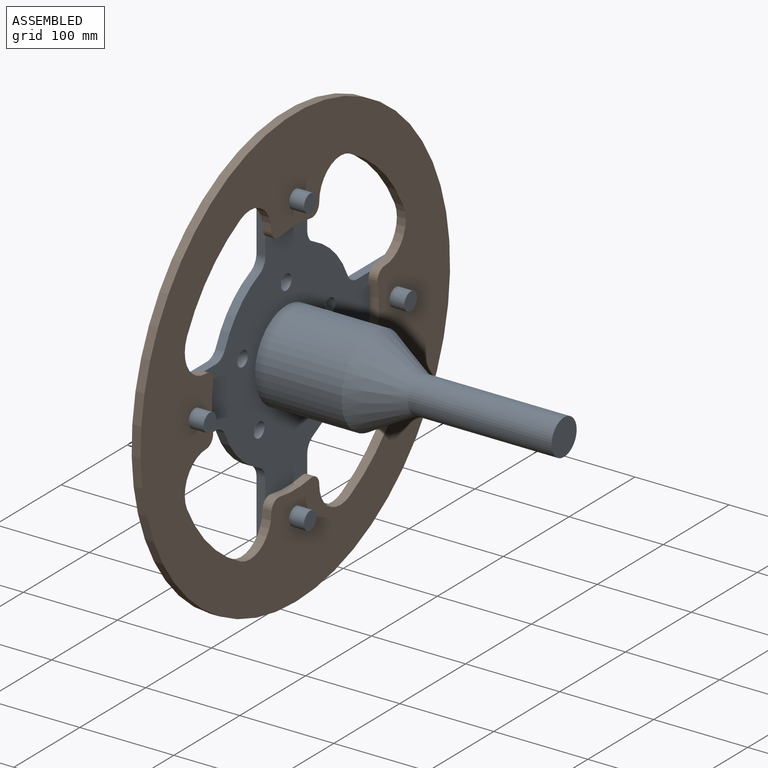
[diagram: assembled view]
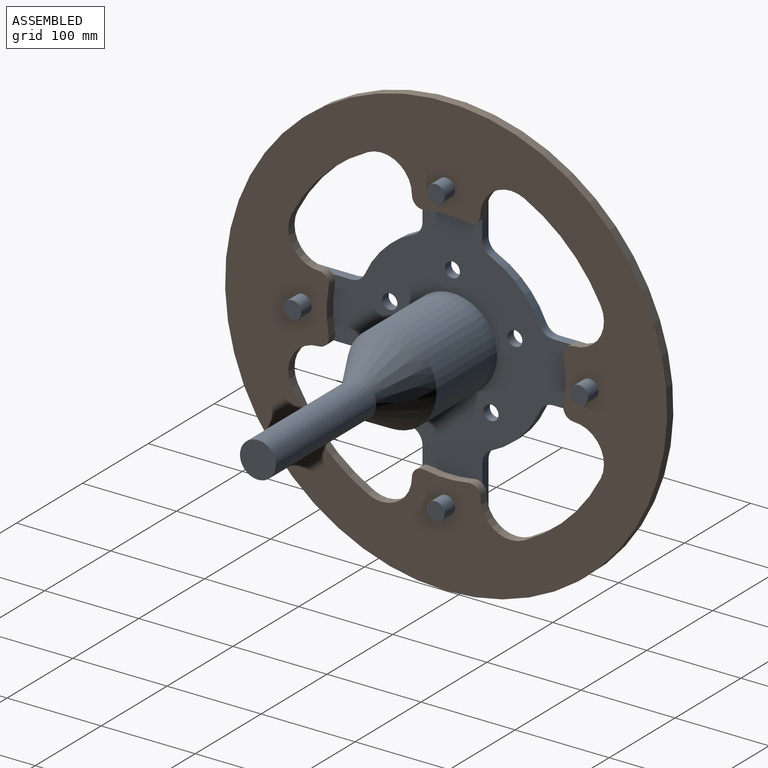
[diagram: assembled view, second angle]
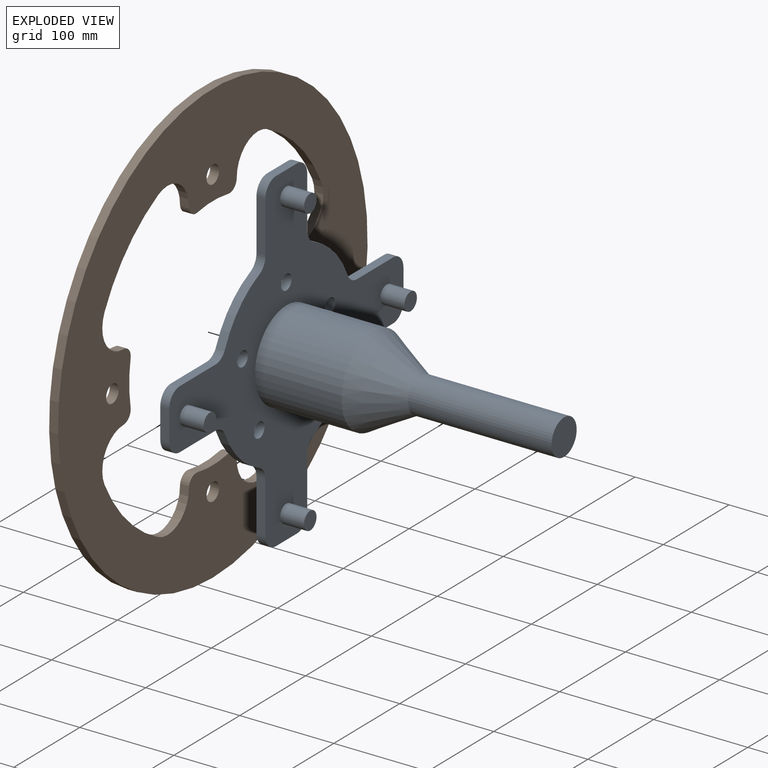
[diagram: exploded view]
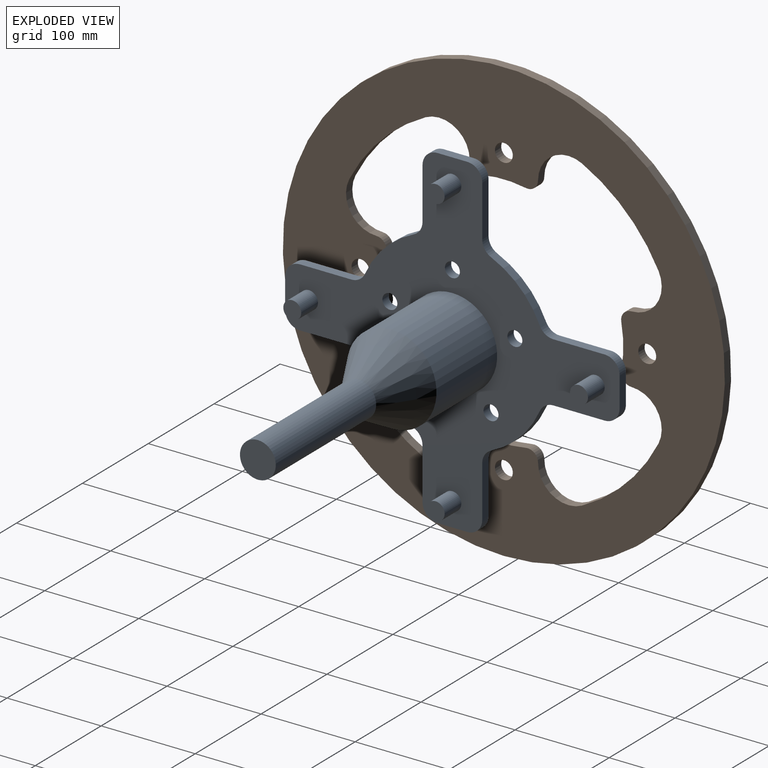
[diagram: exploded view, second angle]
ASSEMBLY  parts=2 mates=3
PART A: 54 faces, bbox 304.8x355.6x355.6 mm
  f0: plane 355.6x355.6mm, normal (1,0,0), area 42685.2mm2, adj f1,f2,f3,f4,f5,f6,f7,f8
  f1: plane 54.54x9.53mm, normal (0,-1,0), area 519.5mm2, adj f0,f23,f26,f27
  f2: cylinder r=101.6mm len=51.69mm, axis (-1,0,0), area 712.2mm2, adj f0,f23,f27,f31
  f3: plane 54.54x9.53mm, normal (0,0,1), area 519.5mm2, adj f0,f23,f31,f38
  f4: plane 31.75x9.53mm, normal (0,-1,0), area 302.4mm2, adj f0,f23,f38,f39
  f5: plane 54.54x9.53mm, normal (0,0,-1), area 519.5mm2, adj f0,f23,f32,f39
  f6: cylinder r=101.6mm len=51.69mm, axis (-1,0,0), area 712.2mm2, adj f0,f23,f32,f33
  f7: plane 54.54x9.53mm, normal (0,-1,0), area 519.5mm2, adj f0,f23,f33,f36
  f8: plane 31.75x9.53mm, normal (0,0,-1), area 302.4mm2, adj f0,f23,f36,f37
  f9: plane 54.54x9.53mm, normal (0,1,0), area 519.5mm2, adj f0,f23,f28,f37
  f10: cylinder r=101.6mm len=51.69mm, axis (-1,0,0), area 712.2mm2, adj f0,f23,f28,f29
  f11: plane 54.54x9.53mm, normal (0,0,-1), area 519.5mm2, adj f0,f23,f29,f34
  f12: plane 31.75x9.53mm, normal (0,1,0), area 302.4mm2, adj f0,f23,f34,f35
  f13: plane 54.54x9.53mm, normal (0,0,1), area 519.5mm2, adj f0,f23,f30,f35
  f14: cylinder r=101.6mm len=51.69mm, axis (-1,0,0), area 712.2mm2, adj f0,f23,f24,f30
  f15: plane 54.54x9.53mm, normal (0,1,0), area 519.5mm2, adj f0,f23,f24,f25
  f16: cylinder r=7.94mm len=15.88mm, axis (-1,0,0), area 475mm2, adj f0,f23
  f17: cylinder r=7.94mm len=15.88mm, axis (-1,0,0), area 475mm2, adj f0,f23
  f18: cylinder r=7.94mm len=15.88mm, axis (-1,0,0), area 475mm2, adj f0,f23
  f19: cylinder r=7.94mm len=15.88mm, axis (-1,0,0), area 475mm2, adj f0,f23
  f20: cylinder r=7.94mm len=15.88mm, axis (-1,0,0), area 475mm2, adj f0,f23
  f21: plane 31.75x9.53mm, normal (0,0,1), area 302.4mm2, adj f0,f23,f25,f26
  f22: cylinder r=41.27mm len=101.6mm, axis (-1,0,0), area 26348.8mm2, adj f23,f41
  f23: plane 355.6x355.6mm, normal (-1,0,0), area 45598.8mm2, adj f1,f2,f3,f4,f5,f6,f7,f8
  f24: cylinder r=15.88mm len=14.51mm, axis (-1,0,0), area 174.4mm2, adj f0,f14,f15,f23
  f25: cylinder r=15.88mm len=15.88mm, axis (1,0,0), area 237.5mm2, adj f0,f15,f21,f23
  f26: cylinder r=15.88mm len=15.88mm, axis (1,0,0), area 237.5mm2, adj f0,f1,f21,f23
  f27: cylinder r=15.88mm len=14.51mm, axis (-1,0,0), area 174.4mm2, adj f0,f1,f2,f23
  f28: cylinder r=15.88mm len=14.51mm, axis (-1,0,0), area 174.4mm2, adj f0,f9,f10,f23
  f29: cylinder r=15.88mm len=14.51mm, axis (-1,0,0), area 174.4mm2, adj f0,f10,f11,f23
  f30: cylinder r=15.88mm len=14.51mm, axis (-1,0,0), area 174.4mm2, adj f0,f13,f14,f23
  f31: cylinder r=15.88mm len=14.51mm, axis (-1,0,0), area 174.4mm2, adj f0,f2,f3,f23
  f32: cylinder r=15.88mm len=14.51mm, axis (-1,0,0), area 174.4mm2, adj f0,f5,f6,f23
  f33: cylinder r=15.88mm len=14.51mm, axis (-1,0,0), area 174.4mm2, adj f0,f6,f7,f23
  f34: cylinder r=15.88mm len=15.88mm, axis (-1,0,0), area 237.5mm2, adj f0,f11,f12,f23
  f35: cylinder r=15.88mm len=15.88mm, axis (-1,0,0), area 237.5mm2, adj f0,f12,f13,f23
  f36: cylinder r=15.88mm len=15.88mm, axis (-1,0,0), area 237.5mm2, adj f0,f7,f8,f23
  f37: cylinder r=15.88mm len=15.88mm, axis (-1,0,0), area 237.5mm2, adj f0,f8,f9,f23
  f38: cylinder r=15.88mm len=15.88mm, axis (-1,0,0), area 237.5mm2, adj f0,f3,f4,f23
  f39: cylinder r=15.88mm len=15.88mm, axis (-1,0,0), area 237.5mm2, adj f0,f4,f5,f23
  f40: plane 25.4x25.4mm, normal (-1,0,0), area 506.7mm2, adj f41
  f41: cone r=41.27mm half-angle=29.4deg, axis (-1,0,0), area 9883.3mm2, adj f22,f40
  f42: cylinder r=19.05mm len=152.4mm, axis (1,0,0), area 18241.5mm2, adj f43,f45
  f43: cone r=19.05mm half-angle=29.4deg, axis (-1,0,0), area 12208.8mm2, adj f42,f44
  f44: cylinder r=47.62mm len=95.25mm, axis (1,0,0), area 27552.2mm2, adj f0,f43
  f45: plane 38.1x38.1mm, normal (1,0,0), area 1140.1mm2, adj f42
  f46: cylinder r=9.53mm len=25.4mm, axis (-1,0,0), area 1520.1mm2, adj f0,f47
  f47: plane 19.05x19.05mm, normal (1,0,0), area 285mm2, adj f46
  f48: cylinder r=9.53mm len=25.4mm, axis (-1,0,0), area 1520.1mm2, adj f0,f49
  f49: plane 19.05x19.05mm, normal (1,0,0), area 285mm2, adj f48
  f50: cylinder r=9.53mm len=25.4mm, axis (-1,0,0), area 1520.1mm2, adj f0,f51
  f51: plane 19.05x19.05mm, normal (1,0,0), area 285mm2, adj f50
  f52: cylinder r=9.53mm len=25.4mm, axis (-1,0,0), area 1520.1mm2, adj f0,f53
  f53: plane 19.05x19.05mm, normal (1,0,0), area 285mm2, adj f52
PART B: 31 faces, bbox 9.5x469.9x469.9 mm
  f0: cylinder r=184.15mm len=81.22mm, axis (-1,0,0), area 1112.6mm2, adj f1,f27,f29,f30
  f1: cylinder r=32.25mm len=46.8mm, axis (-1,0,0), area 626.3mm2, adj f0,f2,f29,f30
  f2: cylinder r=10.91mm len=12.92mm, axis (-1,0,0), area 182.5mm2, adj f1,f3,f29,f30
  f3: cylinder r=127mm len=46.78mm, axis (-1,0,0), area 448.1mm2, adj f2,f4,f29,f30
  f4: cylinder r=10.91mm len=12.92mm, axis (-1,0,0), area 182.5mm2, adj f3,f5,f29,f30
  f5: cylinder r=32.25mm len=46.8mm, axis (-1,0,0), area 626.3mm2, adj f4,f6,f29,f30
  f6: cylinder r=184.15mm len=81.22mm, axis (-1,0,0), area 1112.6mm2, adj f5,f7,f29,f30
  f7: cylinder r=32.25mm len=46.8mm, axis (-1,0,0), area 626.3mm2, adj f6,f8,f29,f30
  f8: cylinder r=10.91mm len=12.92mm, axis (-1,0,0), area 182.5mm2, adj f7,f9,f29,f30
  f9: cylinder r=127mm len=46.78mm, axis (-1,0,0), area 448.1mm2, adj f8,f10,f29,f30
  f10: cylinder r=10.91mm len=12.92mm, axis (-1,0,0), area 182.5mm2, adj f9,f11,f29,f30
  f11: cylinder r=32.25mm len=46.8mm, axis (-1,0,0), area 626.3mm2, adj f10,f12,f29,f30
  f12: cylinder r=184.15mm len=81.22mm, axis (-1,0,0), area 1112.6mm2, adj f11,f13,f29,f30
  f13: cylinder r=32.25mm len=46.8mm, axis (-1,0,0), area 626.3mm2, adj f12,f14,f29,f30
  f14: cylinder r=10.91mm len=12.92mm, axis (-1,0,0), area 182.5mm2, adj f13,f15,f29,f30
  f15: cylinder r=127mm len=46.78mm, axis (-1,0,0), area 448.1mm2, adj f14,f16,f29,f30
  f16: cylinder r=10.91mm len=12.92mm, axis (-1,0,0), area 182.5mm2, adj f15,f17,f29,f30
  f17: cylinder r=32.25mm len=46.8mm, axis (-1,0,0), area 626.3mm2, adj f16,f18,f29,f30
  f18: cylinder r=184.15mm len=81.22mm, axis (-1,0,0), area 1112.6mm2, adj f17,f19,f29,f30
  f19: cylinder r=32.25mm len=46.8mm, axis (-1,0,0), area 626.3mm2, adj f18,f20,f29,f30
  f20: cylinder r=10.91mm len=12.92mm, axis (-1,0,0), area 182.5mm2, adj f19,f21,f29,f30
  f21: cylinder r=127mm len=46.78mm, axis (-1,0,0), area 448.1mm2, adj f20,f22,f29,f30
  f22: cylinder r=10.91mm len=12.92mm, axis (-1,0,0), area 182.5mm2, adj f21,f27,f29,f30
  f23: cylinder r=9.53mm len=19.05mm, axis (-1,0,0), area 570mm2, adj f29,f30
  f24: cylinder r=9.53mm len=19.05mm, axis (-1,0,0), area 570mm2, adj f29,f30
  f25: cylinder r=9.53mm len=19.05mm, axis (-1,0,0), area 570mm2, adj f29,f30
  f26: cylinder r=234.95mm len=469.9mm, axis (-1,0,0), area 14061.1mm2, adj f29,f30
  f27: cylinder r=32.25mm len=46.8mm, axis (-1,0,0), area 626.3mm2, adj f0,f22,f29,f30
  f28: cylinder r=9.53mm len=19.05mm, axis (-1,0,0), area 570mm2, adj f29,f30
  f29: plane 469.9x469.9mm, normal (1,0,0), area 86265mm2, adj f0,f1,f2,f3,f4,f5,f6,f7
  f30: plane 469.9x469.9mm, normal (-1,0,0), area 86265mm2, adj f0,f1,f2,f3,f4,f5,f6,f7
PLACE A at identity fixed
PLACE B t=(9.52,0,0)mm
MATE cylindrical A.f50 <-> B.f28  axis (-1,0,0) through (22.23,0,-152.4)mm
MATE cylindrical A.f46 <-> B.f24  axis (-1,0,0) through (22.23,0,152.4)mm
MATE planar B.f0 <-> A.f0  axis (-1,0,0) through (9.52,0,0)mm
